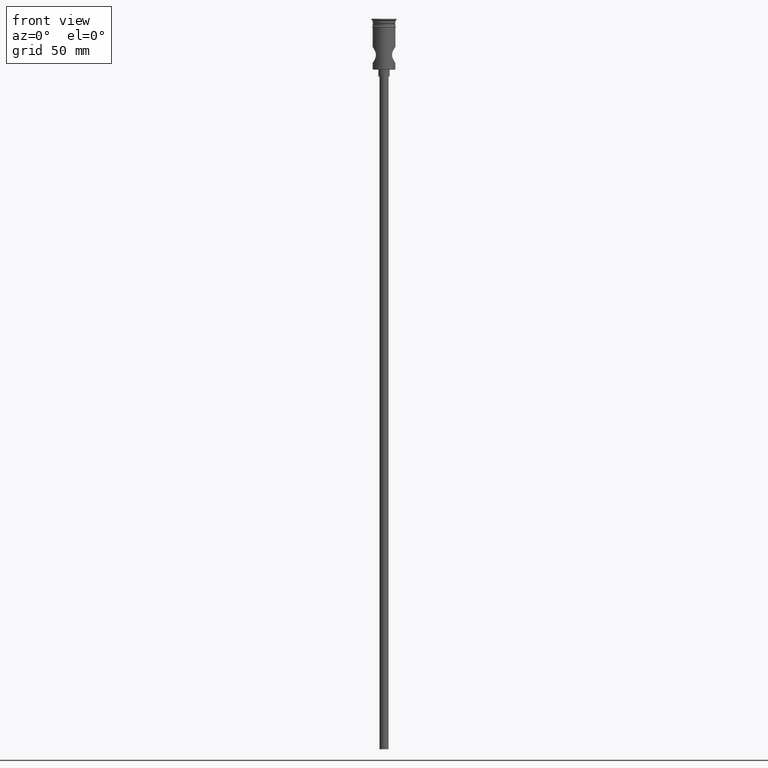
[diagram: clean part render]
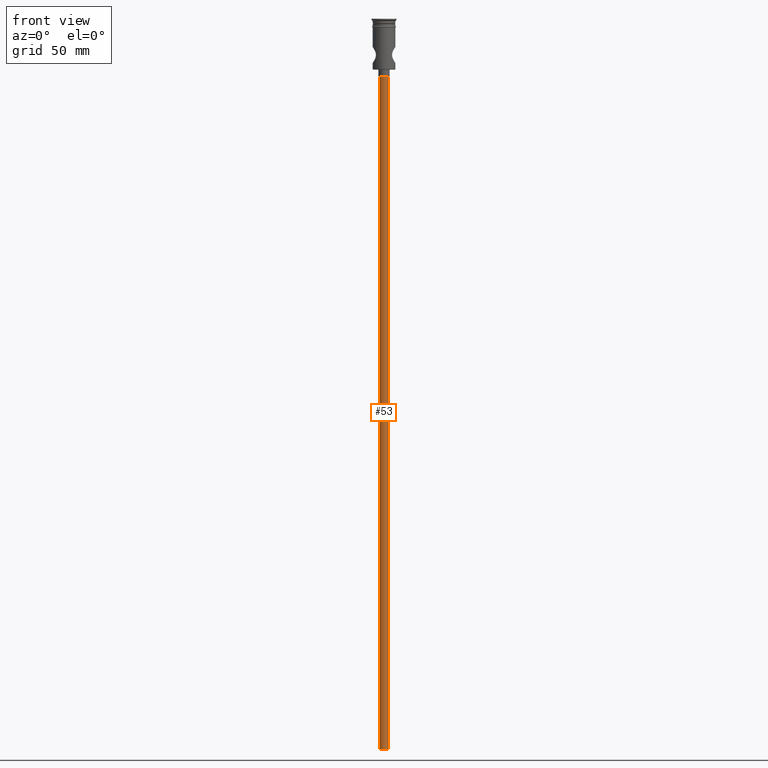
[diagram: same view with one face highlighted and labeled with its STEP entity id]
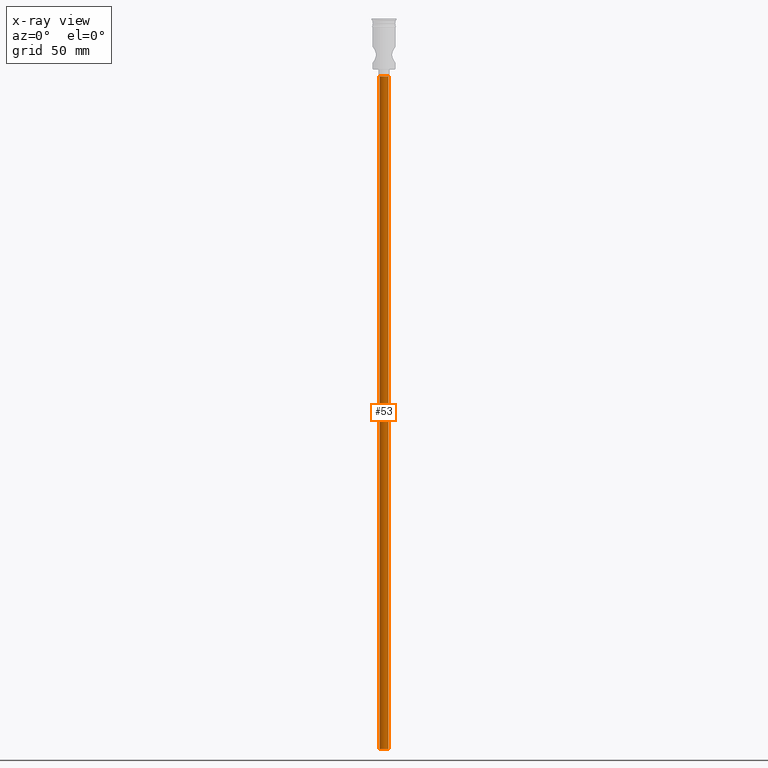
[diagram: x-ray of the same camera — body ghosted, the highlighted face saturated]
A machine part, front view. The second image highlights one B-rep face of the part: STEP entity #53.
The next image is the same camera in x-ray: the body ghosted, the highlighted face saturated — about 0% of this face is hidden behind the body in this view.
In plain terms, the highlighted cylindrical surface (edge-blend (fillet) strip) has radius 2 mm, axis along (-0, -0, 1).
Its self-contained STEP definition (entity closure, byte-faithful):
#53 = ADVANCED_FACE ( 'NONE', ( #174 ), #1199, .T. ) ;
#96 = CARTESIAN_POINT ( 'NONE',  ( 0.000000000000000000, 0.000000000000000000, -322.5000000000000000 ) ) ;
#127 = VECTOR ( 'NONE', #1132, 1000.000000000000000 ) ;
#174 = FACE_OUTER_BOUND ( 'NONE', #971, .T. ) ;
#177 = AXIS2_PLACEMENT_3D ( 'NONE', #338, #437, #1233 ) ;
#338 = CARTESIAN_POINT ( 'NONE',  ( 0.000000000000000000, 0.000000000000000000, -25.50000000000000000 ) ) ;
#365 = EDGE_CURVE ( 'NONE', #386, #1440, #555, .T. ) ;
#377 = CARTESIAN_POINT ( 'NONE',  ( -2.000000000000000000, 2.449293598294706414E-16, -322.5000000000000000 ) ) ;
#386 = VERTEX_POINT ( 'NONE', #1113 ) ;
#424 = DIRECTION ( 'NONE',  ( 1.000000000000000000, 0.000000000000000000, 0.000000000000000000 ) ) ;
#425 = CARTESIAN_POINT ( 'NONE',  ( -2.000000000000000000, 2.449293598294706414E-16, -25.50000000000000000 ) ) ;
#437 = DIRECTION ( 'NONE',  ( 0.000000000000000000, 0.000000000000000000, -1.000000000000000000 ) ) ;
#438 = ORIENTED_EDGE ( 'NONE', *, *, #1315, .F. ) ;
#484 = EDGE_CURVE ( 'NONE', #1431, #386, #821, .T. ) ;
#555 = CIRCLE ( 'NONE', #177, 2.000000000000000000 ) ;
#645 = CARTESIAN_POINT ( 'NONE',  ( 2.000000000000000000, 0.000000000000000000, -322.5000000000000000 ) ) ;
#685 = DIRECTION ( 'NONE',  ( -1.000000000000000000, 0.000000000000000000, 0.000000000000000000 ) ) ;
#770 = AXIS2_PLACEMENT_3D ( 'NONE', #96, #880, #685 ) ;
#771 = VERTEX_POINT ( 'NONE', #377 ) ;
#778 = DIRECTION ( 'NONE',  ( -0.000000000000000000, -0.000000000000000000, 1.000000000000000000 ) ) ;
#791 = ORIENTED_EDGE ( 'NONE', *, *, #484, .T. ) ;
#821 = LINE ( 'NONE', #1266, #127 ) ;
#880 = DIRECTION ( 'NONE',  ( 0.000000000000000000, 0.000000000000000000, -1.000000000000000000 ) ) ;
#971 = EDGE_LOOP ( 'NONE', ( #438, #1363, #791, #1220 ) ) ;
#978 = DIRECTION ( 'NONE',  ( -0.000000000000000000, -0.000000000000000000, 1.000000000000000000 ) ) ;
#980 = CIRCLE ( 'NONE', #770, 2.000000000000000000 ) ;
#1074 = EDGE_CURVE ( 'NONE', #1431, #771, #980, .T. ) ;
#1101 = VECTOR ( 'NONE', #778, 1000.000000000000000 ) ;
#1111 = CARTESIAN_POINT ( 'NONE',  ( 0.000000000000000000, 0.000000000000000000, -322.5000000000000000 ) ) ;
#1113 = CARTESIAN_POINT ( 'NONE',  ( 2.000000000000000000, 0.000000000000000000, -25.50000000000000000 ) ) ;
#1125 = AXIS2_PLACEMENT_3D ( 'NONE', #1111, #978, #424 ) ;
#1132 = DIRECTION ( 'NONE',  ( -0.000000000000000000, -0.000000000000000000, 1.000000000000000000 ) ) ;
#1199 = CYLINDRICAL_SURFACE ( 'NONE', #1125, 2.000000000000000000 ) ;
#1220 = ORIENTED_EDGE ( 'NONE', *, *, #365, .T. ) ;
#1233 = DIRECTION ( 'NONE',  ( -1.000000000000000000, 0.000000000000000000, 0.000000000000000000 ) ) ;
#1266 = CARTESIAN_POINT ( 'NONE',  ( 2.000000000000000000, 0.000000000000000000, -322.5000000000000000 ) ) ;
#1315 = EDGE_CURVE ( 'NONE', #771, #1440, #1338, .T. ) ;
#1338 = LINE ( 'NONE', #1434, #1101 ) ;
#1363 = ORIENTED_EDGE ( 'NONE', *, *, #1074, .F. ) ;
#1431 = VERTEX_POINT ( 'NONE', #645 ) ;
#1434 = CARTESIAN_POINT ( 'NONE',  ( -2.000000000000000000, 2.449293598294706414E-16, -322.5000000000000000 ) ) ;
#1440 = VERTEX_POINT ( 'NONE', #425 ) ;